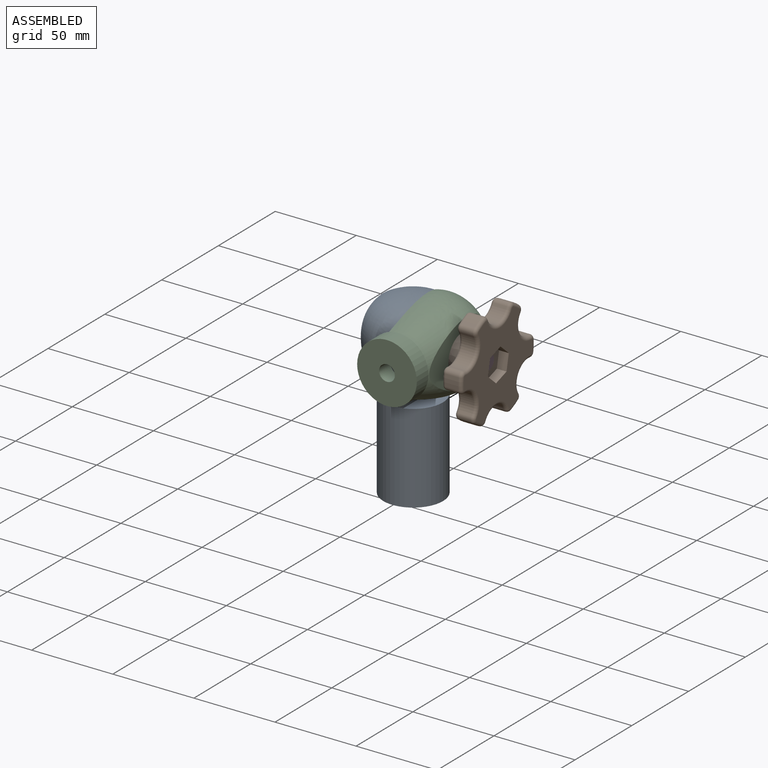
[diagram: assembled view]
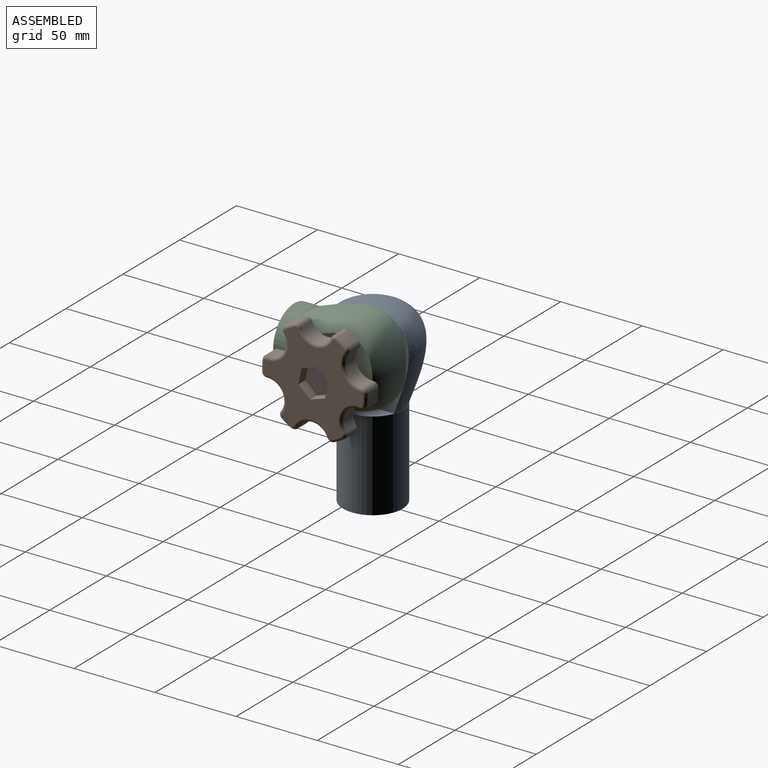
[diagram: assembled view, second angle]
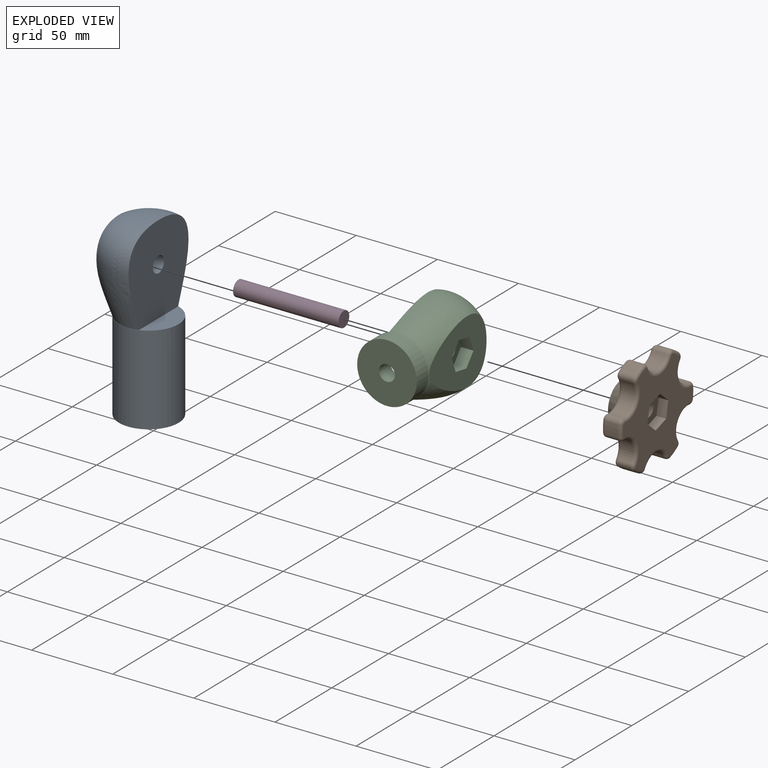
[diagram: exploded view]
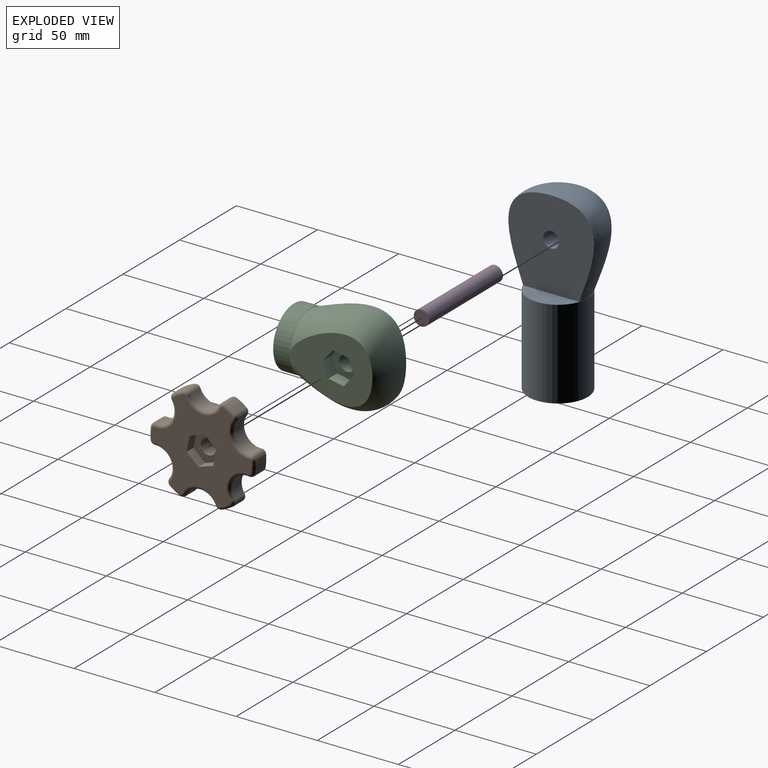
[diagram: exploded view, second angle]
ASSEMBLY  parts=4 mates=3
PART A: 16 faces, bbox 54.1x54.1x110 mm
  f0: cylinder r=4.88mm len=16.73mm, axis (1,0,0), area 512.3mm2, adj f7,f9
  f1: revolved ~55x54.12mm, area 3862.1mm2, adj f6,f7,f8
  f2: cylinder r=4.88mm len=50mm, axis (0,0,-1), area 1531.5mm2, adj f4,f5
  f3: cylinder r=18.4mm len=55mm, axis (0,0,-1), area 6358.6mm2, adj f4,f6
  f4: plane 36.8x36.8mm, normal (0,0,-1), area 989mm2, adj f2,f3
  f5: plane 9.75x9.75mm, normal (0,0,-1), area 74.7mm2, adj f2
  f6: plane 36.8x36.8mm, normal (0,0,1), area 324.2mm2, adj f1,f3,f7
  f7: plane 54.7x52.8mm, normal (-1,0,0), area 2385.8mm2, adj f0,f1,f6
  f8: plane 50.45x39.57mm, normal (1,0,0), area 1255.7mm2, adj f1,f10,f11,f12,f13,f14,f15
  f9: plane 19.19x18.23mm, normal (1,0,0), area 171.2mm2, adj f0,f10,f11,f12,f13,f14,f15
  f10: plane 7.75x7.51mm, normal (0,0.64,0.77), area 75.4mm2, adj f8,f9,f11,f15
  f11: plane 9.11x7.75mm, normal (0,-0.35,0.94), area 75.4mm2, adj f8,f9,f10,f12
  f12: plane 9.59x7.75mm, normal (0,-0.99,0.17), area 75.4mm2, adj f8,f9,f11,f13
  f13: plane 7.75x7.51mm, normal (0,-0.64,-0.77), area 75.4mm2, adj f8,f9,f12,f14
  f14: plane 9.11x7.75mm, normal (0,0.35,-0.94), area 75.4mm2, adj f8,f9,f13,f15
  f15: plane 9.59x7.75mm, normal (0,0.99,-0.17), area 75.4mm2, adj f8,f9,f10,f14
PART B: 84 faces, bbox 65.4x60.1x22 mm
  f0: cylinder r=4.76mm len=16mm, axis (0,0,-1), area 478.8mm2, adj f75,f77
  f1: cylinder r=32.5mm len=8mm, axis (0,0,-1), area 57.9mm2, adj f15,f18,f49,f63
  f2: cylinder r=32.5mm len=8mm, axis (0,0,-1), area 57.6mm2, adj f16,f25,f44,f55
  f3: cylinder r=32.5mm len=8mm, axis (0,0,-1), area 57.9mm2, adj f17,f20,f41,f71
  f4: cylinder r=32.5mm len=8mm, axis (0,0,-1), area 57.9mm2, adj f19,f22,f33,f70
  f5: cylinder r=32.5mm len=8mm, axis (0,0,-1), area 57.9mm2, adj f21,f24,f28,f62
  f6: cylinder r=32.5mm len=8mm, axis (0,0,-1), area 57.6mm2, adj f23,f26,f36,f54
  f7: plane 61x56.08mm, normal (0,0,-1), area 720.9mm2, adj f27,f28,f29,f30,f31,f32,f33,f34
  f8: plane 61x56.08mm, normal (0,0,1), area 1697.1mm2, adj f51,f52,f53,f54,f55,f56,f57,f58
  f9: cylinder r=10mm len=18.15mm, axis (0,0,-1), area 182mm2, adj f25,f26,f40,f51
  f10: cylinder r=10mm len=15.74mm, axis (0,0,-1), area 182mm2, adj f23,f24,f32,f58
  f11: cylinder r=10mm len=15.9mm, axis (0,0,-1), area 184.5mm2, adj f21,f22,f29,f66
  f12: cylinder r=10mm len=18.15mm, axis (0,0,-1), area 182mm2, adj f19,f20,f37,f74
  f13: cylinder r=10mm len=15.9mm, axis (0,0,-1), area 184.5mm2, adj f17,f18,f45,f67
  f14: cylinder r=10mm len=15.74mm, axis (0,0,-1), area 182mm2, adj f15,f16,f48,f59
  f15: cylinder r=3mm len=8mm, axis (0,0,1), area 37.2mm2, adj f1,f14,f50,f61
  f16: cylinder r=3mm len=8mm, axis (0,0,-1), area 37.2mm2, adj f2,f14,f46,f57
  f17: cylinder r=3mm len=8mm, axis (0,0,1), area 37.6mm2, adj f3,f13,f43,f69
  f18: cylinder r=3mm len=8mm, axis (0,0,-1), area 37.6mm2, adj f1,f13,f47,f65
  f19: cylinder r=3mm len=8mm, axis (0,0,1), area 37.2mm2, adj f4,f12,f35,f72
  f20: cylinder r=3mm len=8mm, axis (0,0,-1), area 37.2mm2, adj f3,f12,f39,f73
  f21: cylinder r=3mm len=8mm, axis (0,0,1), area 37.6mm2, adj f5,f11,f27,f64
  f22: cylinder r=3mm len=8mm, axis (0,0,-1), area 37.6mm2, adj f4,f11,f31,f68
  f23: cylinder r=3mm len=8mm, axis (0,0,1), area 37.2mm2, adj f6,f10,f34,f56
  f24: cylinder r=3mm len=8mm, axis (0,0,-1), area 37.2mm2, adj f5,f10,f30,f60
  f25: cylinder r=3mm len=8mm, axis (0,0,1), area 37.2mm2, adj f2,f9,f42,f53
  f26: cylinder r=3mm len=8mm, axis (0,0,-1), area 37.2mm2, adj f6,f9,f38,f52
  f27: torus R=1mm, axis (0,0,1), area 11.2mm2, adj f7,f21,f28,f29
  f28: torus R=30.5mm, axis (0,0,1), area 22.2mm2, adj f5,f7,f27,f30
  f29: torus R=12mm, axis (0,0,1), area 77.7mm2, adj f7,f11,f27,f31
  f30: torus R=1mm, axis (0,0,1), area 11.1mm2, adj f7,f24,f28,f32
  f31: torus R=1mm, axis (0,0,1), area 11.2mm2, adj f7,f22,f29,f33
  f32: torus R=12mm, axis (0,0,1), area 76.6mm2, adj f7,f10,f30,f34
  f33: torus R=30.5mm, axis (0,0,1), area 22.2mm2, adj f4,f7,f31,f35
  f34: torus R=1mm, axis (0,0,1), area 11.1mm2, adj f7,f23,f32,f36
  f35: torus R=1mm, axis (0,0,1), area 11.1mm2, adj f7,f19,f33,f37
  f36: torus R=30.5mm, axis (0,0,1), area 22.1mm2, adj f6,f7,f34,f38
  f37: torus R=12mm, axis (0,0,1), area 76.6mm2, adj f7,f12,f35,f39
  f38: torus R=1mm, axis (0,0,1), area 11.1mm2, adj f7,f26,f36,f40
  f39: torus R=1mm, axis (0,0,1), area 11.1mm2, adj f7,f20,f37,f41
  f40: torus R=12mm, axis (0,0,1), area 76.6mm2, adj f7,f9,f38,f42
  f41: torus R=30.5mm, axis (0,0,1), area 22.2mm2, adj f3,f7,f39,f43
  f42: torus R=1mm, axis (0,0,1), area 11.1mm2, adj f7,f25,f40,f44
  f43: torus R=1mm, axis (0,0,1), area 11.2mm2, adj f7,f17,f41,f45
  f44: torus R=30.5mm, axis (0,0,1), area 22.1mm2, adj f2,f7,f42,f46
  f45: torus R=12mm, axis (0,0,1), area 77.7mm2, adj f7,f13,f43,f47
  f46: torus R=1mm, axis (0,0,1), area 11.1mm2, adj f7,f16,f44,f48
  f47: torus R=1mm, axis (0,0,1), area 11.2mm2, adj f7,f18,f45,f49
  f48: torus R=12mm, axis (0,0,1), area 76.6mm2, adj f7,f14,f46,f50
  f49: torus R=30.5mm, axis (0,0,1), area 22.2mm2, adj f1,f7,f47,f50
  f50: torus R=1mm, axis (0,0,1), area 11.1mm2, adj f7,f15,f48,f49
  f51: torus R=12mm, axis (0,0,1), area 76.6mm2, adj f8,f9,f52,f53
  f52: torus R=1mm, axis (0,0,1), area 11.1mm2, adj f8,f26,f51,f54
  f53: torus R=1mm, axis (0,0,1), area 11.1mm2, adj f8,f25,f51,f55
  f54: torus R=30.5mm, axis (0,0,1), area 22.1mm2, adj f6,f8,f52,f56
  f55: torus R=30.5mm, axis (0,0,1), area 22.1mm2, adj f2,f8,f53,f57
  f56: torus R=1mm, axis (0,0,1), area 11.1mm2, adj f8,f23,f54,f58
  f57: torus R=1mm, axis (0,0,1), area 11.1mm2, adj f8,f16,f55,f59
  f58: torus R=12mm, axis (0,0,1), area 76.6mm2, adj f8,f10,f56,f60
  f59: torus R=12mm, axis (0,0,1), area 76.6mm2, adj f8,f14,f57,f61
  f60: torus R=1mm, axis (0,0,1), area 11.1mm2, adj f8,f24,f58,f62
  f61: torus R=1mm, axis (0,0,1), area 11.1mm2, adj f8,f15,f59,f63
  f62: torus R=30.5mm, axis (0,0,1), area 22.2mm2, adj f5,f8,f60,f64
  f63: torus R=30.5mm, axis (0,0,1), area 22.2mm2, adj f1,f8,f61,f65
  f64: torus R=1mm, axis (0,0,1), area 11.2mm2, adj f8,f21,f62,f66
  f65: torus R=1mm, axis (0,0,1), area 11.2mm2, adj f8,f18,f63,f67
  f66: torus R=12mm, axis (0,0,1), area 77.7mm2, adj f8,f11,f64,f68
  f67: torus R=12mm, axis (0,0,1), area 77.7mm2, adj f8,f13,f65,f69
  f68: torus R=1mm, axis (0,0,1), area 11.2mm2, adj f8,f22,f66,f70
  f69: torus R=1mm, axis (0,0,1), area 11.2mm2, adj f8,f17,f67,f71
  f70: torus R=30.5mm, axis (0,0,1), area 22.2mm2, adj f4,f8,f68,f72
  f71: torus R=30.5mm, axis (0,0,1), area 22.2mm2, adj f3,f8,f69,f73
  f72: torus R=1mm, axis (0,0,1), area 11.1mm2, adj f8,f19,f70,f74
  f73: torus R=1mm, axis (0,0,1), area 11.1mm2, adj f8,f20,f71,f74
  f74: torus R=12mm, axis (0,0,1), area 76.6mm2, adj f8,f12,f72,f73
  f75: plane 25x25mm, normal (0,0,-1), area 419.6mm2, adj f0,f76
  f76: cone r=12.5mm half-angle=35.8deg, axis (0,0,1), area 1248.8mm2, adj f7,f75
  f77: plane 19.19x18.23mm, normal (0,0,1), area 174.6mm2, adj f0,f78,f79,f80,f81,f82,f83
  f78: plane 7.51x6.19mm, normal (0.64,0.77,0), area 58.4mm2, adj f8,f77,f79,f83
  f79: plane 9.11x6mm, normal (-0.35,0.94,0), area 58.4mm2, adj f8,f77,f78,f80
  f80: plane 9.59x6mm, normal (-0.99,0.17,0), area 58.4mm2, adj f8,f77,f79,f81
  f81: plane 7.51x6.19mm, normal (-0.64,-0.77,0), area 58.4mm2, adj f8,f77,f80,f82
  f82: plane 9.11x6mm, normal (0.35,-0.94,0), area 58.4mm2, adj f8,f77,f81,f83
  f83: plane 9.59x6mm, normal (0.99,-0.17,0), area 58.4mm2, adj f8,f77,f78,f82
PART C: 22 faces, bbox 54.1x54.1x65.2 mm
  f0: cylinder r=4.88mm len=10.2mm, axis (0,0,-1), area 312.4mm2, adj f5,f6
  f1: plane 54.7x52.8mm, normal (-1,0,0), area 2252.7mm2, adj f2,f3,f6,f15,f16,f19
  f2: cylinder r=4.88mm len=16.73mm, axis (1,0,0), area 512.3mm2, adj f1,f8
  f3: revolved ~55x54.12mm, area 3862.1mm2, adj f1,f6,f7
  f4: cylinder r=18.4mm len=36.8mm, axis (0,0,-1), area 1179.2mm2, adj f5,f6
  f5: plane 36.8x36.8mm, normal (0,0,-1), area 989mm2, adj f0,f4
  f6: plane 36.8x36.8mm, normal (0,0,1), area 473.6mm2, adj f0,f1,f3,f4,f15,f16,f17,f18
  f7: plane 50.45x39.57mm, normal (1,0,0), area 1255.7mm2, adj f3,f9,f10,f11,f12,f13,f14
  f8: plane 19.19x18.23mm, normal (1,0,0), area 171.2mm2, adj f2,f9,f10,f11,f12,f13,f14
  f9: plane 7.75x7.51mm, normal (0,0.64,0.77), area 75.4mm2, adj f7,f8,f10,f14
  f10: plane 9.11x7.75mm, normal (0,-0.35,0.94), area 75.4mm2, adj f7,f8,f9,f11
  f11: plane 9.59x7.75mm, normal (0,-0.99,0.17), area 75.4mm2, adj f7,f8,f10,f12
  f12: plane 7.75x7.51mm, normal (0,-0.64,-0.77), area 75.4mm2, adj f7,f8,f11,f13
  f13: plane 9.11x7.75mm, normal (0,0.35,-0.94), area 75.4mm2, adj f7,f8,f12,f14
  f14: plane 9.59x7.75mm, normal (0,0.99,-0.17), area 75.4mm2, adj f7,f8,f9,f13
  f15: plane 10.86x7.9mm, normal (0,-1,0), area 85.8mm2, adj f1,f6,f18,f19
  f16: plane 10.86x7.9mm, normal (0,1,0), area 85.8mm2, adj f1,f6,f17,f19
  f17: plane 8.43x7.9mm, normal (-0.87,0.5,0), area 76.9mm2, adj f6,f16,f18,f19
  f18: plane 8.43x7.9mm, normal (-0.87,-0.5,0), area 76.9mm2, adj f6,f15,f17,f19
  f19: plane 16.85x15.73mm, normal (0,0,-1), area 149.4mm2, adj f1,f15,f16,f17,f18,f21
  f20: plane 9.75x9.75mm, normal (0,0,-1), area 74.7mm2, adj f21
  f21: cylinder r=4.88mm len=9.75mm, axis (0,0,-1), area 217.5mm2, adj f19,f20
PART D: 3 faces, bbox 9.5x9.5x65 mm
  f0: cylinder r=4.75mm len=65mm, axis (0,0,-1), area 1939.9mm2, adj f1,f2
  f1: plane 9.5x9.5mm, normal (0,0,1), area 70.9mm2, adj f0
  f2: plane 9.5x9.5mm, normal (0,0,-1), area 70.9mm2, adj f0
PLACE A rot(axis=(0,0,-1),180deg) t=(2.48,-39.02,-64.26)mm
PLACE B rot(axis=(-0.7,0.17,-0.7),160.4deg) t=(42.96,-39.02,-4.26)mm
PLACE C rot(axis=(-1,0,0),90deg) t=(14.48,-76.62,-4.26)mm
PLACE D rot(axis=(-0.7,-0.17,0.7),160.4deg) t=(48.96,-39.02,-4.26)mm
MATE revolute C.f2 <-> A.f0  axis (-1,0,0) through (8.48,-39.02,-4.26)mm
MATE revolute B.f76 <-> C.f2  axis (-1,0,0) through (32.96,-39.02,-4.26)mm
MATE fastened D.f0 <-> B.f0  axis (1,0,0) through (48.96,-39.02,-4.26)mm
